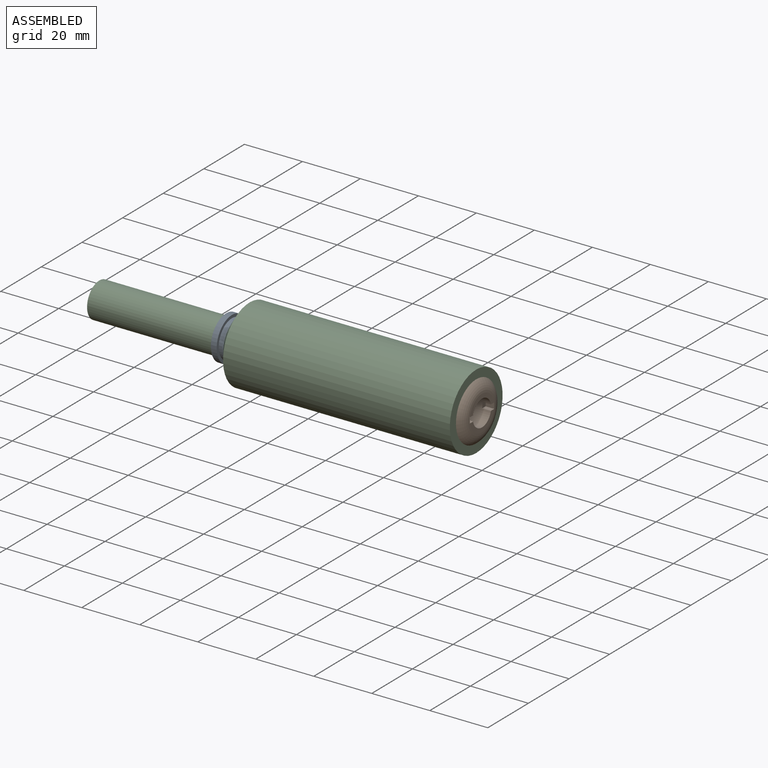
[diagram: assembled view]
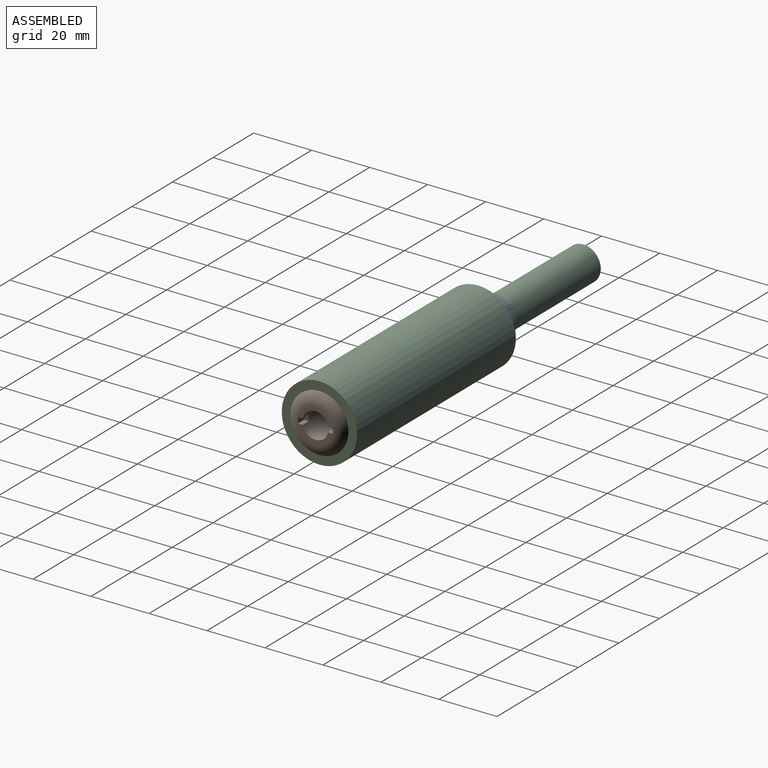
[diagram: assembled view, second angle]
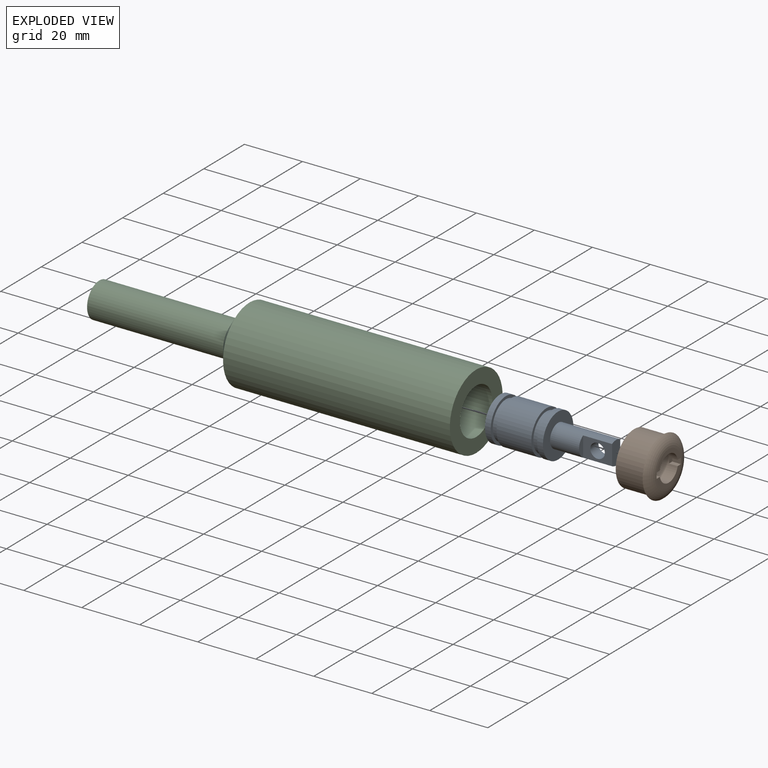
[diagram: exploded view]
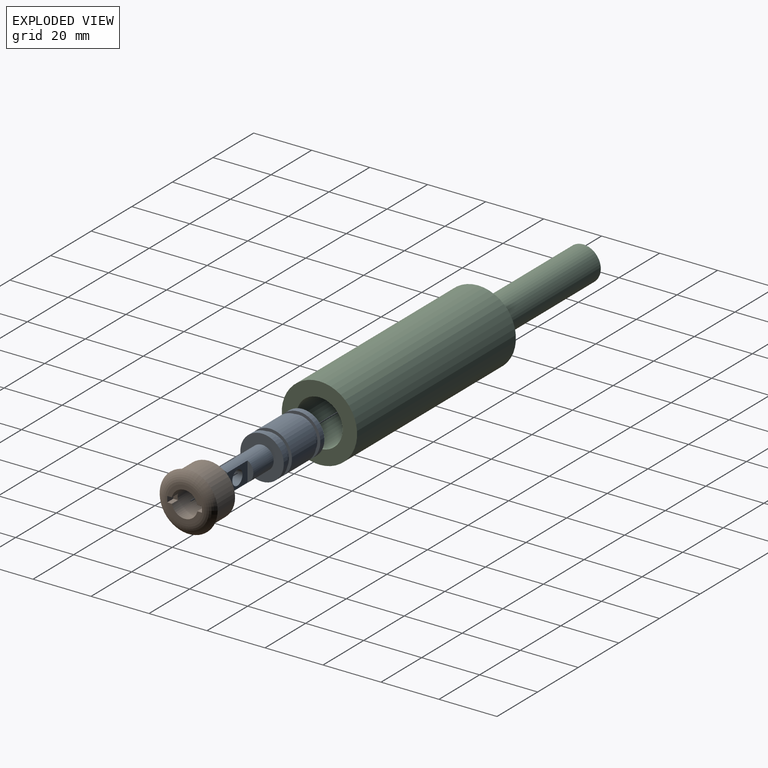
[diagram: exploded view, second angle]
ASSEMBLY  parts=3 mates=2
PART A: 18 faces, bbox 43.8x15x15 mm
  f0: cylinder r=4mm len=20mm, axis (1,0,0), area 335.1mm2, adj f1,f12,f13,f14,f15,f16
  f1: plane 8x4mm, normal (1,0,0), area 30.6mm2, adj f0,f14,f16
  f2: cone r=7.5mm half-angle=62.9deg, axis (1,0,0), area 198.5mm2, adj f3
  f3: cylinder r=7.5mm len=15mm, axis (1,0,0), area 94.2mm2, adj f2,f4
  f4: plane 15x15mm, normal (1,0,0), area 44mm2, adj f3,f5
  f5: cylinder r=6.5mm len=13mm, axis (1,0,0), area 81.7mm2, adj f4,f6
  f6: plane 15x15mm, normal (-1,0,0), area 44mm2, adj f5,f7
  f7: cylinder r=7.5mm len=15mm, axis (1,0,0), area 565.5mm2, adj f6,f8
  f8: plane 15x15mm, normal (1,0,0), area 44mm2, adj f7,f9
  f9: cylinder r=6.5mm len=13mm, axis (1,0,0), area 81.7mm2, adj f8,f10
  f10: plane 15x15mm, normal (-1,0,0), area 44mm2, adj f9,f11
  f11: cylinder r=7.5mm len=15mm, axis (1,0,0), area 94.2mm2, adj f10,f12
  f12: plane 15x15mm, normal (1,0,0), area 126.4mm2, adj f0,f11
  f13: plane 6.93x2mm, normal (1,0,0), area 9.8mm2, adj f0,f14
  f14: plane 10x6.93mm, normal (0,1,0), area 49.6mm2, adj f0,f1,f13,f17
  f15: plane 6.93x2mm, normal (1,0,0), area 9.8mm2, adj f0,f16
  f16: plane 10x6.93mm, normal (0,-1,0), area 49.6mm2, adj f0,f1,f15,f17
  f17: cylinder r=2.5mm len=5mm, axis (0,-1,0), area 62.8mm2, adj f14,f16
PART B: 15 faces, bbox 23.8x12x23.8 mm
  f0: plane 11.83x5mm, normal (0,-1,0), area 21.7mm2, adj f1,f2,f7,f13
  f1: torus R=6mm, axis (0,1,0), area 237.5mm2, adj f0,f5,f6,f7,f8,f9,f12,f13
  f2: cylinder r=4.5mm len=12mm, axis (0,-1,0), area 327.2mm2, adj f0,f4,f5,f7,f8,f10,f11,f12
  f3: cylinder r=9mm len=18mm, axis (0,-1,0), area 565.5mm2, adj f4,f6
  f4: plane 18x18mm, normal (0,1,0), area 190.9mm2, adj f2,f3
  f5: plane 11.83x5mm, normal (0,-1,0), area 21.7mm2, adj f1,f2,f8,f12
  f6: plane 20x20mm, normal (0,1,0), area 59.7mm2, adj f1,f3
  f7: plane 3x1.61mm, normal (-1,0,0), area 4.8mm2, adj f0,f1,f2,f9,f10
  f8: plane 3x1.61mm, normal (1,0,0), area 4.8mm2, adj f1,f2,f5,f9,f10
  f9: plane 3x2mm, normal (0,0,-1), area 6mm2, adj f1,f7,f8,f10
  f10: plane 2x1.61mm, normal (0,-1,0), area 3.1mm2, adj f2,f7,f8,f9
  f11: plane 2x1.61mm, normal (0,-1,0), area 3.1mm2, adj f2,f12,f13,f14
  f12: plane 3x1.61mm, normal (1,0,0), area 4.8mm2, adj f1,f2,f5,f11,f14
  f13: plane 3x1.61mm, normal (-1,0,0), area 4.8mm2, adj f0,f1,f2,f11,f14
  f14: plane 3x2mm, normal (0,0,1), area 6mm2, adj f1,f11,f12,f13
PART C: 8 faces, bbox 130x26x26 mm
  f0: cylinder r=8mm len=76.57mm, axis (-1,0,0), area 3848.9mm2, adj f1,f7
  f1: cone r=3mm half-angle=55.6deg, axis (1,0,0), area 209.5mm2, adj f0,f2
  f2: cylinder r=3mm len=50mm, axis (-1,0,0), area 942.5mm2, adj f1,f3
  f3: plane 12x12mm, normal (-1,0,0), area 84.8mm2, adj f2,f4
  f4: cylinder r=6mm len=47mm, axis (-1,0,0), area 1771.9mm2, adj f3,f5
  f5: cone r=6mm half-angle=55.6deg, axis (1,0,0), area 506.6mm2, adj f4,f6
  f6: cylinder r=13mm len=78.2mm, axis (-1,0,0), area 6387.5mm2, adj f5,f7
  f7: plane 26x26mm, normal (1,0,0), area 329.9mm2, adj f0,f6
PLACE A t=(13.37,-15.08,8.74)mm
PLACE B rot(axis=(0.58,-0.58,0.58),120deg) t=(54.53,-15.08,8.74)mm
PLACE C t=(-17.37,-15.08,8.74)mm fixed
MATE slider A.f0 <-> C.f0  axis (1,0,0) through (-21.71,-15.08,8.74)mm
MATE fastened B.f1 <-> C.f0  axis (-1,0,0) through (54.53,-15.08,8.74)mm
